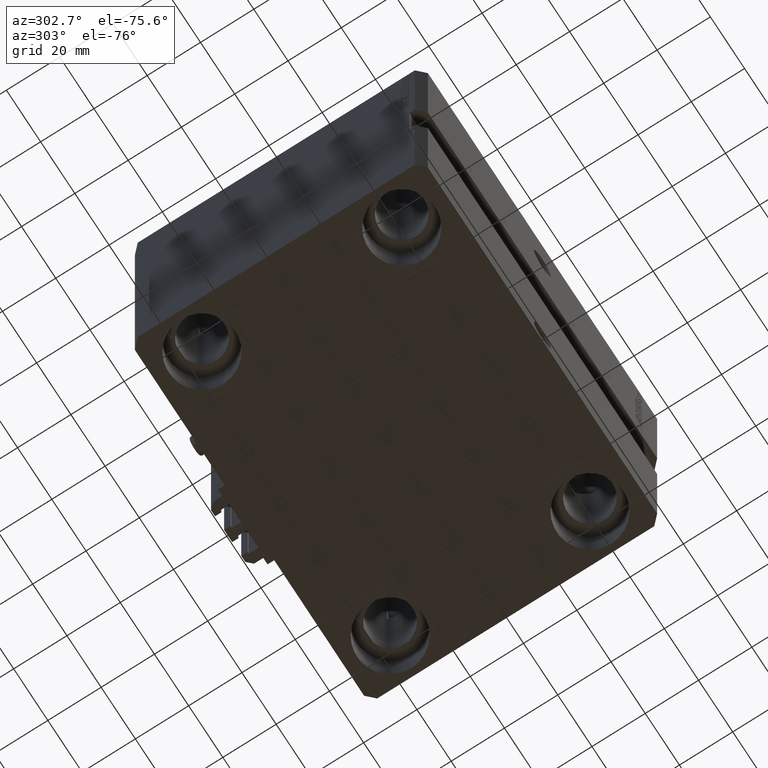
[diagram: clean part render]
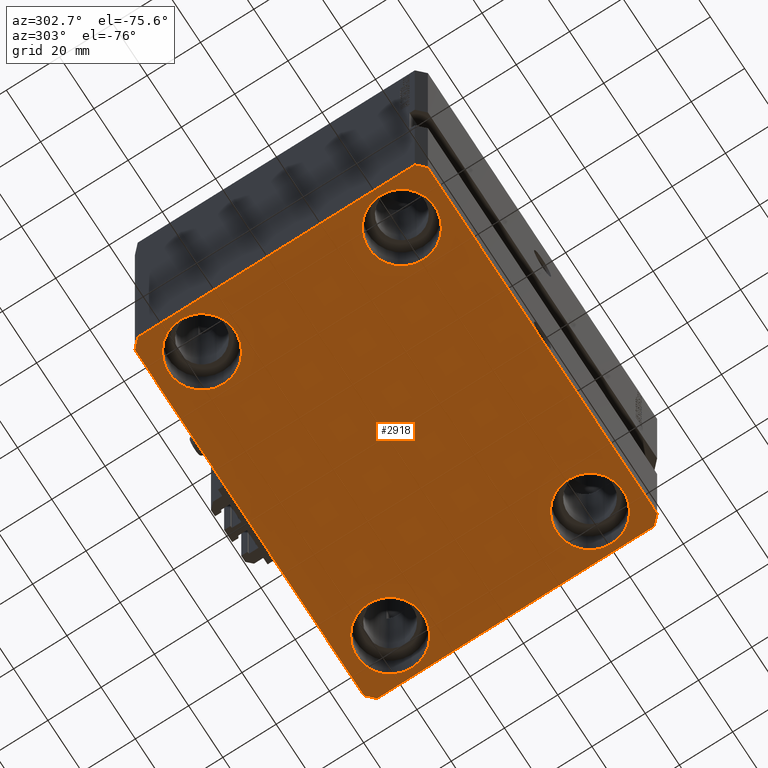
[diagram: same view with one face highlighted and labeled with its STEP entity id]
A machine part, auxiliary view. The second image highlights one B-rep face of the part: STEP entity #2918.
In plain terms, the highlighted planar face has unit normal (0, 0, 1).
Its self-contained STEP definition (entity closure, byte-faithful):
#747 = CIRCLE ( 'NONE', #48020, 12.49999999999999645 ) ;
#768 = ORIENTED_EDGE ( 'NONE', *, *, #11383, .F. ) ;
#862 = DIRECTION ( 'NONE',  ( -0.000000000000000000, -0.000000000000000000, 1.000000000000000000 ) ) ;
#1029 = CARTESIAN_POINT ( 'NONE',  ( -67.50000000000000000, 37.49999999999999289, -120.0000000000000000 ) ) ;
#1114 = VECTOR ( 'NONE', #17435, 1000.000000000000000 ) ;
#1226 = VERTEX_POINT ( 'NONE', #37624 ) ;
#1411 = FACE_BOUND ( 'NONE', #15611, .T. ) ;
#1556 = ORIENTED_EDGE ( 'NONE', *, *, #10407, .T. ) ;
#1776 = DIRECTION ( 'NONE',  ( 1.000000000000000000, 0.000000000000000000, 0.000000000000000000 ) ) ;
#1848 = VECTOR ( 'NONE', #35433, 1000.000000000000114 ) ;
#1850 = VERTEX_POINT ( 'NONE', #24148 ) ;
#2317 = CARTESIAN_POINT ( 'NONE',  ( 55.00000000000000711, 37.50000000000002132, -120.0000000000000000 ) ) ;
#2918 = ADVANCED_FACE ( 'NONE', ( #35198, #4144, #4867, #1411, #45596 ), #16450, .F. ) ;
#3329 = CARTESIAN_POINT ( 'NONE',  ( 70.00000000000056843, 51.99999999999996447, -120.0000000000000000 ) ) ;
#3662 = VECTOR ( 'NONE', #48439, 1000.000000000000000 ) ;
#4144 = FACE_BOUND ( 'NONE', #22279, .T. ) ;
#4457 = VERTEX_POINT ( 'NONE', #5876 ) ;
#4540 = AXIS2_PLACEMENT_3D ( 'NONE', #7151, #22208, #25416 ) ;
#4543 = CARTESIAN_POINT ( 'NONE',  ( -67.00000000000001421, -55.00000000000000000, -120.0000000000000000 ) ) ;
#4700 = EDGE_CURVE ( 'NONE', #1850, #26955, #36174, .T. ) ;
#4755 = AXIS2_PLACEMENT_3D ( 'NONE', #42370, #27067, #12282 ) ;
#4867 = FACE_BOUND ( 'NONE', #33345, .T. ) ;
#5033 = DIRECTION ( 'NONE',  ( 1.000000000000000000, 1.553483709829976241E-16, 0.000000000000000000 ) ) ;
#5114 = DIRECTION ( 'NONE',  ( -0.000000000000000000, -0.000000000000000000, 1.000000000000000000 ) ) ;
#5876 = CARTESIAN_POINT ( 'NONE',  ( 70.00000000000056843, 51.99999999999996447, -120.0000000000000000 ) ) ;
#6407 = ORIENTED_EDGE ( 'NONE', *, *, #36687, .T. ) ;
#7151 = CARTESIAN_POINT ( 'NONE',  ( -55.00000000000000711, 37.49999999999999289, -120.0000000000000000 ) ) ;
#7660 = CARTESIAN_POINT ( 'NONE',  ( -69.99999999999998579, 51.99999999999999289, -120.0000000000000000 ) ) ;
#7736 = CIRCLE ( 'NONE', #35326, 12.49999999999999645 ) ;
#8693 = VECTOR ( 'NONE', #36647, 1000.000000000000000 ) ;
#9444 = VERTEX_POINT ( 'NONE', #40839 ) ;
#10287 = CARTESIAN_POINT ( 'NONE',  ( 67.00000000000001421, -54.99999999999997868, -120.0000000000000000 ) ) ;
#10375 = ORIENTED_EDGE ( 'NONE', *, *, #41796, .T. ) ;
#10407 = EDGE_CURVE ( 'NONE', #14678, #13570, #45226, .T. ) ;
#10440 = DIRECTION ( 'NONE',  ( 1.000000000000000000, 0.000000000000000000, 0.000000000000000000 ) ) ;
#10676 = ORIENTED_EDGE ( 'NONE', *, *, #38680, .F. ) ;
#11383 = EDGE_CURVE ( 'NONE', #26955, #16476, #21139, .T. ) ;
#11419 = LINE ( 'NONE', #36851, #3662 ) ;
#11679 = CARTESIAN_POINT ( 'NONE',  ( 67.00000000000061107, 55.00000000000002132, -120.0000000000000000 ) ) ;
#11722 = CARTESIAN_POINT ( 'NONE',  ( -55.00000000000000711, -37.50000000000000711, -120.0000000000000000 ) ) ;
#11792 = CARTESIAN_POINT ( 'NONE',  ( 0.000000000000000000, 0.000000000000000000, -120.0000000000000000 ) ) ;
#12282 = DIRECTION ( 'NONE',  ( 1.000000000000000000, 0.000000000000000000, 0.000000000000000000 ) ) ;
#12342 = EDGE_CURVE ( 'NONE', #27007, #1226, #46720, .T. ) ;
#12646 = CARTESIAN_POINT ( 'NONE',  ( -70.00000000000001421, -51.99999999999999289, -120.0000000000000000 ) ) ;
#12912 = CARTESIAN_POINT ( 'NONE',  ( -55.00000000000000711, 37.49999999999999289, -120.0000000000000000 ) ) ;
#13570 = VERTEX_POINT ( 'NONE', #20530 ) ;
#14360 = ORIENTED_EDGE ( 'NONE', *, *, #15952, .F. ) ;
#14678 = VERTEX_POINT ( 'NONE', #39436 ) ;
#14946 = LINE ( 'NONE', #10287, #46419 ) ;
#15386 = AXIS2_PLACEMENT_3D ( 'NONE', #11722, #862, #38121 ) ;
#15401 = VERTEX_POINT ( 'NONE', #29850 ) ;
#15611 = EDGE_LOOP ( 'NONE', ( #21871, #32341 ) ) ;
#15740 = CARTESIAN_POINT ( 'NONE',  ( -55.00000000000000711, -37.50000000000000711, -120.0000000000000000 ) ) ;
#15952 = EDGE_CURVE ( 'NONE', #47628, #4457, #11419, .T. ) ;
#16450 = PLANE ( 'NONE',  #30903 ) ;
#16476 = VERTEX_POINT ( 'NONE', #33015 ) ;
#17325 = DIRECTION ( 'NONE',  ( -0.000000000000000000, -0.000000000000000000, 1.000000000000000000 ) ) ;
#17366 = AXIS2_PLACEMENT_3D ( 'NONE', #22232, #17325, #47428 ) ;
#17435 = DIRECTION ( 'NONE',  ( -2.668805347656626678E-16, -1.000000000000000000, 0.000000000000000000 ) ) ;
#17836 = ORIENTED_EDGE ( 'NONE', *, *, #34525, .F. ) ;
#18253 = VERTEX_POINT ( 'NONE', #40661 ) ;
#20530 = CARTESIAN_POINT ( 'NONE',  ( -42.50000000000000711, -37.50000000000000711, -120.0000000000000000 ) ) ;
#20671 = VECTOR ( 'NONE', #47664, 1000.000000000000000 ) ;
#21139 = LINE ( 'NONE', #36189, #1114 ) ;
#21183 = ORIENTED_EDGE ( 'NONE', *, *, #4700, .F. ) ;
#21871 = ORIENTED_EDGE ( 'NONE', *, *, #32158, .T. ) ;
#22036 = EDGE_CURVE ( 'NONE', #15401, #9444, #37746, .T. ) ;
#22208 = DIRECTION ( 'NONE',  ( -0.000000000000000000, -0.000000000000000000, 1.000000000000000000 ) ) ;
#22232 = CARTESIAN_POINT ( 'NONE',  ( 55.00000000000000711, 37.50000000000002132, -120.0000000000000000 ) ) ;
#22279 = EDGE_LOOP ( 'NONE', ( #10375, #23378 ) ) ;
#22544 = LINE ( 'NONE', #11679, #26225 ) ;
#23099 = VERTEX_POINT ( 'NONE', #37098 ) ;
#23233 = ORIENTED_EDGE ( 'NONE', *, *, #47975, .F. ) ;
#23378 = ORIENTED_EDGE ( 'NONE', *, *, #22036, .T. ) ;
#23612 = DIRECTION ( 'NONE',  ( 1.000000000000000000, 0.000000000000000000, -0.000000000000000000 ) ) ;
#24148 = CARTESIAN_POINT ( 'NONE',  ( -67.00000000000000000, 55.00000000000000000, -120.0000000000000000 ) ) ;
#24405 = AXIS2_PLACEMENT_3D ( 'NONE', #2317, #28698, #10440 ) ;
#24659 = CARTESIAN_POINT ( 'NONE',  ( -67.00000000000001421, -55.00000000000000000, -120.0000000000000000 ) ) ;
#25416 = DIRECTION ( 'NONE',  ( 1.000000000000000000, 0.000000000000000000, 0.000000000000000000 ) ) ;
#25762 = LINE ( 'NONE', #3329, #8693 ) ;
#25809 = CIRCLE ( 'NONE', #4540, 12.49999999999999645 ) ;
#26003 = VERTEX_POINT ( 'NONE', #29253 ) ;
#26225 = VECTOR ( 'NONE', #42928, 1000.000000000000000 ) ;
#26818 = DIRECTION ( 'NONE',  ( 0.000000000000000000, 0.000000000000000000, 1.000000000000000000 ) ) ;
#26955 = VERTEX_POINT ( 'NONE', #7660 ) ;
#27007 = VERTEX_POINT ( 'NONE', #24659 ) ;
#27062 = DIRECTION ( 'NONE',  ( 1.000000000000000000, 0.000000000000000000, 0.000000000000000000 ) ) ;
#27067 = DIRECTION ( 'NONE',  ( -0.000000000000000000, -0.000000000000000000, 1.000000000000000000 ) ) ;
#28698 = DIRECTION ( 'NONE',  ( -0.000000000000000000, -0.000000000000000000, 1.000000000000000000 ) ) ;
#29253 = CARTESIAN_POINT ( 'NONE',  ( 42.50000000000000711, 37.50000000000002132, -120.0000000000000000 ) ) ;
#29850 = CARTESIAN_POINT ( 'NONE',  ( 67.50000000000000000, -37.50000000000000711, -120.0000000000000000 ) ) ;
#30729 = CARTESIAN_POINT ( 'NONE',  ( 67.00000000000061107, 55.00000000000002132, -120.0000000000000000 ) ) ;
#30903 = AXIS2_PLACEMENT_3D ( 'NONE', #11792, #26818, #23612 ) ;
#31377 = LINE ( 'NONE', #12646, #20671 ) ;
#31418 = AXIS2_PLACEMENT_3D ( 'NONE', #34387, #35554, #1776 ) ;
#31483 = CARTESIAN_POINT ( 'NONE',  ( -67.00000000000000000, 55.00000000000000000, -120.0000000000000000 ) ) ;
#32158 = EDGE_CURVE ( 'NONE', #34719, #23099, #25809, .T. ) ;
#32341 = ORIENTED_EDGE ( 'NONE', *, *, #35848, .T. ) ;
#32561 = EDGE_LOOP ( 'NONE', ( #1556, #43353 ) ) ;
#33015 = CARTESIAN_POINT ( 'NONE',  ( -70.00000000000001421, -51.99999999999999289, -120.0000000000000000 ) ) ;
#33100 = CIRCLE ( 'NONE', #17366, 12.49999999999999645 ) ;
#33171 = ORIENTED_EDGE ( 'NONE', *, *, #12342, .F. ) ;
#33345 = EDGE_LOOP ( 'NONE', ( #36589, #6407 ) ) ;
#33498 = ORIENTED_EDGE ( 'NONE', *, *, #46988, .F. ) ;
#33593 = EDGE_LOOP ( 'NONE', ( #23233, #10676, #14360, #17836, #33171, #33498, #768, #21183 ) ) ;
#34202 = EDGE_CURVE ( 'NONE', #13570, #14678, #7736, .T. ) ;
#34387 = CARTESIAN_POINT ( 'NONE',  ( 55.00000000000000711, -37.50000000000000711, -120.0000000000000000 ) ) ;
#34525 = EDGE_CURVE ( 'NONE', #1226, #47628, #14946, .T. ) ;
#34621 = DIRECTION ( 'NONE',  ( 1.000000000000000000, 0.000000000000000000, 0.000000000000000000 ) ) ;
#34671 = CIRCLE ( 'NONE', #4755, 12.49999999999999645 ) ;
#34719 = VERTEX_POINT ( 'NONE', #1029 ) ;
#35198 = FACE_BOUND ( 'NONE', #32561, .T. ) ;
#35326 = AXIS2_PLACEMENT_3D ( 'NONE', #15740, #5114, #27062 ) ;
#35433 = DIRECTION ( 'NONE',  ( -0.7071067811865451302, -0.7071067811865500152, 0.000000000000000000 ) ) ;
#35554 = DIRECTION ( 'NONE',  ( -0.000000000000000000, -0.000000000000000000, 1.000000000000000000 ) ) ;
#35848 = EDGE_CURVE ( 'NONE', #23099, #34719, #747, .T. ) ;
#36174 = LINE ( 'NONE', #31483, #1848 ) ;
#36189 = CARTESIAN_POINT ( 'NONE',  ( -69.99999999999998579, 51.99999999999999289, -120.0000000000000000 ) ) ;
#36589 = ORIENTED_EDGE ( 'NONE', *, *, #41232, .T. ) ;
#36647 = DIRECTION ( 'NONE',  ( -0.7071067811865344721, 0.7071067811865606734, 0.000000000000000000 ) ) ;
#36687 = EDGE_CURVE ( 'NONE', #18253, #26003, #37839, .T. ) ;
#36851 = CARTESIAN_POINT ( 'NONE',  ( 70.00000000000000000, -51.99999999999999289, -120.0000000000000000 ) ) ;
#37098 = CARTESIAN_POINT ( 'NONE',  ( -42.50000000000000711, 37.49999999999999289, -120.0000000000000000 ) ) ;
#37555 = VERTEX_POINT ( 'NONE', #30729 ) ;
#37624 = CARTESIAN_POINT ( 'NONE',  ( 67.00000000000001421, -54.99999999999997868, -120.0000000000000000 ) ) ;
#37746 = CIRCLE ( 'NONE', #31418, 12.49999999999999645 ) ;
#37839 = CIRCLE ( 'NONE', #24405, 12.49999999999999645 ) ;
#38121 = DIRECTION ( 'NONE',  ( 1.000000000000000000, 0.000000000000000000, 0.000000000000000000 ) ) ;
#38680 = EDGE_CURVE ( 'NONE', #4457, #37555, #25762, .T. ) ;
#39312 = DIRECTION ( 'NONE',  ( -0.000000000000000000, -0.000000000000000000, 1.000000000000000000 ) ) ;
#39436 = CARTESIAN_POINT ( 'NONE',  ( -67.50000000000000000, -37.50000000000000711, -120.0000000000000000 ) ) ;
#40661 = CARTESIAN_POINT ( 'NONE',  ( 67.50000000000000000, 37.50000000000002132, -120.0000000000000000 ) ) ;
#40839 = CARTESIAN_POINT ( 'NONE',  ( 42.50000000000000711, -37.50000000000000711, -120.0000000000000000 ) ) ;
#41232 = EDGE_CURVE ( 'NONE', #26003, #18253, #33100, .T. ) ;
#41796 = EDGE_CURVE ( 'NONE', #9444, #15401, #34671, .T. ) ;
#42370 = CARTESIAN_POINT ( 'NONE',  ( 55.00000000000000711, -37.50000000000000711, -120.0000000000000000 ) ) ;
#42928 = DIRECTION ( 'NONE',  ( -1.000000000000000000, -1.553483709829969339E-16, 0.000000000000000000 ) ) ;
#43353 = ORIENTED_EDGE ( 'NONE', *, *, #34202, .T. ) ;
#44814 = DIRECTION ( 'NONE',  ( 0.7071067811865474617, 0.7071067811865474617, 0.000000000000000000 ) ) ;
#45226 = CIRCLE ( 'NONE', #15386, 12.49999999999999645 ) ;
#45596 = FACE_OUTER_BOUND ( 'NONE', #33593, .T. ) ;
#46014 = CARTESIAN_POINT ( 'NONE',  ( 70.00000000000000000, -51.99999999999999289, -120.0000000000000000 ) ) ;
#46089 = VECTOR ( 'NONE', #5033, 1000.000000000000000 ) ;
#46419 = VECTOR ( 'NONE', #44814, 1000.000000000000114 ) ;
#46720 = LINE ( 'NONE', #4543, #46089 ) ;
#46988 = EDGE_CURVE ( 'NONE', #16476, #27007, #31377, .T. ) ;
#47428 = DIRECTION ( 'NONE',  ( 1.000000000000000000, 0.000000000000000000, 0.000000000000000000 ) ) ;
#47628 = VERTEX_POINT ( 'NONE', #46014 ) ;
#47664 = DIRECTION ( 'NONE',  ( 0.7071067811865466846, -0.7071067811865483499, 0.000000000000000000 ) ) ;
#47975 = EDGE_CURVE ( 'NONE', #37555, #1850, #22544, .T. ) ;
#48020 = AXIS2_PLACEMENT_3D ( 'NONE', #12912, #39312, #34621 ) ;
#48439 = DIRECTION ( 'NONE',  ( 5.337610695313255329E-15, 1.000000000000000000, 0.000000000000000000 ) ) ;